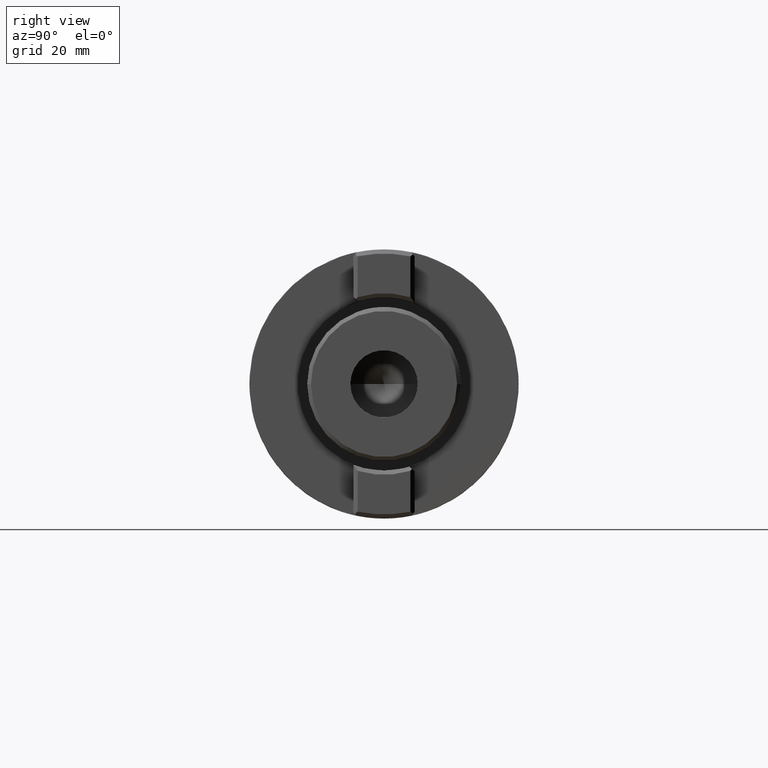
[diagram: clean part render]
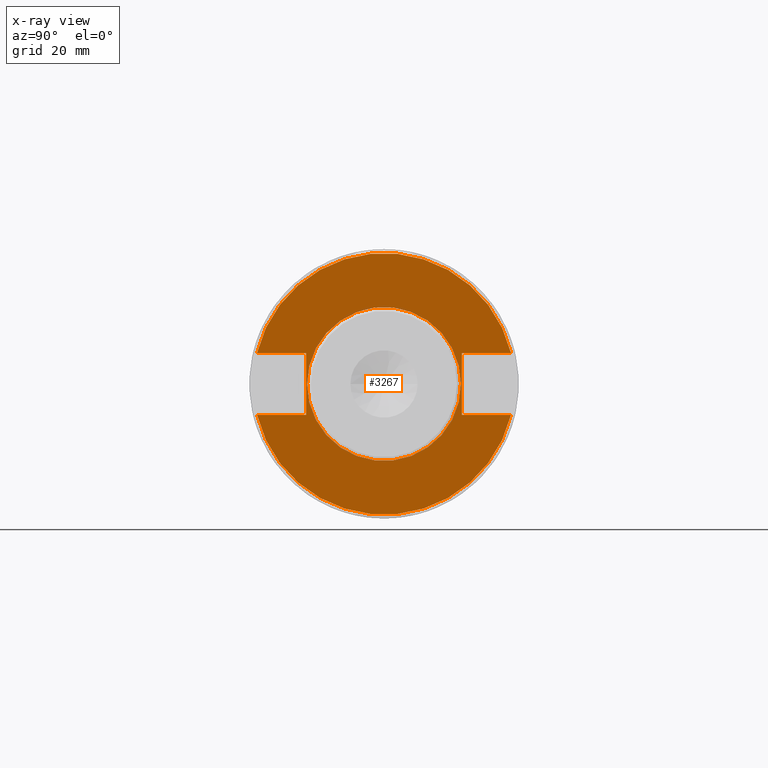
[diagram: x-ray — body ghosted, one internal face saturated and labeled with its STEP entity id]
A machine part, right view, then the same camera in x-ray: the body is ghosted and one INTERNAL B-rep face — a face not visible from any outside direction — is saturated and labeled: STEP entity #3267.
In plain terms, the highlighted planar face has unit normal (1, 0, 0).
Its self-contained STEP definition (entity closure, byte-faithful):
#986=CARTESIAN_POINT('',(5.6E1,0.E0,0.E0));
#987=DIRECTION('',(1.E0,0.E0,0.E0));
#988=DIRECTION('',(0.E0,9.715670198439E-1,2.367647058824E-1));
#989=AXIS2_PLACEMENT_3D('',#986,#987,#988);
#1002=CARTESIAN_POINT('',(5.6E1,0.E0,0.E0));
#1003=DIRECTION('',(1.E0,0.E0,0.E0));
#1004=DIRECTION('',(0.E0,-9.715670198439E-1,-2.367647058824E-1));
#1005=AXIS2_PLACEMENT_3D('',#1002,#1003,#1004);
#1027=CARTESIAN_POINT('',(5.6E1,0.E0,0.E0));
#1028=DIRECTION('',(1.E0,0.E0,0.E0));
#1029=DIRECTION('',(0.E0,1.E0,0.E0));
#1030=AXIS2_PLACEMENT_3D('',#1027,#1028,#1029);
#1032=CARTESIAN_POINT('',(5.6E1,0.E0,0.E0));
#1033=DIRECTION('',(-1.E0,0.E0,0.E0));
#1034=DIRECTION('',(0.E0,1.E0,0.E0));
#1035=AXIS2_PLACEMENT_3D('',#1032,#1033,#1034);
#1037=DIRECTION('',(0.E0,0.E0,-1.E0));
#1038=VECTOR('',#1037,1.61E1);
#1039=CARTESIAN_POINT('',(5.6E1,-2.025E1,8.05E0));
#1040=LINE('',#1039,#1038);
#1041=DIRECTION('',(0.E0,1.E0,0.E0));
#1042=VECTOR('',#1041,1.278327867469E1);
#1043=CARTESIAN_POINT('',(5.6E1,-3.303327867469E1,8.05E0));
#1044=LINE('',#1043,#1042);
#1045=DIRECTION('',(0.E0,-1.E0,0.E0));
#1046=VECTOR('',#1045,1.278327867469E1);
#1047=CARTESIAN_POINT('',(5.6E1,3.303327867469E1,8.05E0));
#1048=LINE('',#1047,#1046);
#1049=DIRECTION('',(0.E0,0.E0,-1.E0));
#1050=VECTOR('',#1049,1.61E1);
#1051=CARTESIAN_POINT('',(5.6E1,2.025E1,8.05E0));
#1052=LINE('',#1051,#1050);
#1053=DIRECTION('',(0.E0,-1.E0,0.E0));
#1054=VECTOR('',#1053,1.278327867469E1);
#1055=CARTESIAN_POINT('',(5.6E1,3.303327867469E1,-8.05E0));
#1056=LINE('',#1055,#1054);
#1057=DIRECTION('',(0.E0,1.E0,0.E0));
#1058=VECTOR('',#1057,1.278327867469E1);
#1059=CARTESIAN_POINT('',(5.6E1,-3.303327867469E1,-8.05E0));
#1060=LINE('',#1059,#1058);
#1847=CARTESIAN_POINT('',(5.6E1,2.E1,0.E0));
#1848=CARTESIAN_POINT('',(5.6E1,-2.E1,0.E0));
#1849=VERTEX_POINT('',#1847);
#1850=VERTEX_POINT('',#1848);
#1873=CARTESIAN_POINT('',(5.6E1,2.025E1,8.05E0));
#1874=CARTESIAN_POINT('',(5.6E1,2.025E1,-8.05E0));
#1875=VERTEX_POINT('',#1873);
#1876=VERTEX_POINT('',#1874);
#1877=CARTESIAN_POINT('',(5.6E1,3.303327867469E1,8.05E0));
#1878=VERTEX_POINT('',#1877);
#1879=CARTESIAN_POINT('',(5.6E1,3.303327867469E1,-8.05E0));
#1880=VERTEX_POINT('',#1879);
#1893=CARTESIAN_POINT('',(5.6E1,-2.025E1,8.05E0));
#1894=VERTEX_POINT('',#1893);
#1895=CARTESIAN_POINT('',(5.6E1,-2.025E1,-8.05E0));
#1896=VERTEX_POINT('',#1895);
#1901=CARTESIAN_POINT('',(5.6E1,-3.303327867469E1,8.05E0));
#1902=VERTEX_POINT('',#1901);
#1903=CARTESIAN_POINT('',(5.6E1,-3.303327867469E1,-8.05E0));
#1904=VERTEX_POINT('',#1903);
#3244=CARTESIAN_POINT('',(5.6E1,0.E0,0.E0));
#3245=DIRECTION('',(1.E0,0.E0,0.E0));
#3246=DIRECTION('',(0.E0,-1.E0,0.E0));
#3247=AXIS2_PLACEMENT_3D('',#3244,#3245,#3246);
#3248=PLANE('',#3247);
#3249=ORIENTED_EDGE('',*,*,#3141,.F.);
#3250=ORIENTED_EDGE('',*,*,#3159,.F.);
#3251=ORIENTED_EDGE('',*,*,#3209,.F.);
#3252=ORIENTED_EDGE('',*,*,#3233,.T.);
#3254=ORIENTED_EDGE('',*,*,#3253,.T.);
#3256=ORIENTED_EDGE('',*,*,#3255,.F.);
#3257=ORIENTED_EDGE('',*,*,#3220,.F.);
#3258=ORIENTED_EDGE('',*,*,#3124,.T.);
#3259=EDGE_LOOP('',(#3249,#3250,#3251,#3252,#3254,#3256,#3257,#3258));
#3260=FACE_OUTER_BOUND('',#3259,.F.);
#3262=ORIENTED_EDGE('',*,*,#3261,.T.);
#3264=ORIENTED_EDGE('',*,*,#3263,.F.);
#3265=EDGE_LOOP('',(#3262,#3264));
#3266=FACE_BOUND('',#3265,.F.);
#3267=ADVANCED_FACE('',(#3260,#3266),#3248,.T.);
#990=CIRCLE('',#989,3.4E1);
#1006=CIRCLE('',#1005,3.4E1);
#1031=CIRCLE('',#1030,2.E1);
#1036=CIRCLE('',#1035,2.E1);
#3124=EDGE_CURVE('',#1904,#1896,#1060,.T.);
#3141=EDGE_CURVE('',#1894,#1896,#1040,.T.);
#3159=EDGE_CURVE('',#1902,#1894,#1044,.T.);
#3209=EDGE_CURVE('',#1878,#1902,#990,.T.);
#3220=EDGE_CURVE('',#1904,#1880,#1006,.T.);
#3233=EDGE_CURVE('',#1878,#1875,#1048,.T.);
#3253=EDGE_CURVE('',#1875,#1876,#1052,.T.);
#3255=EDGE_CURVE('',#1880,#1876,#1056,.T.);
#3261=EDGE_CURVE('',#1849,#1850,#1031,.T.);
#3263=EDGE_CURVE('',#1849,#1850,#1036,.T.);